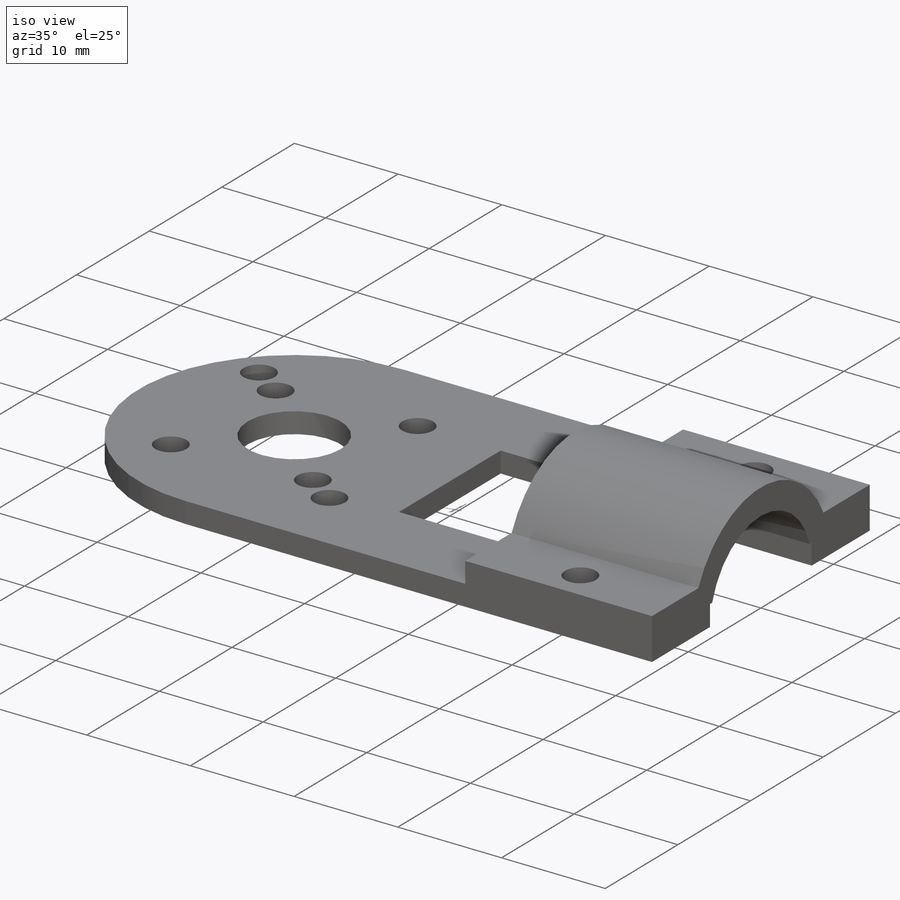
[diagram: iso view]
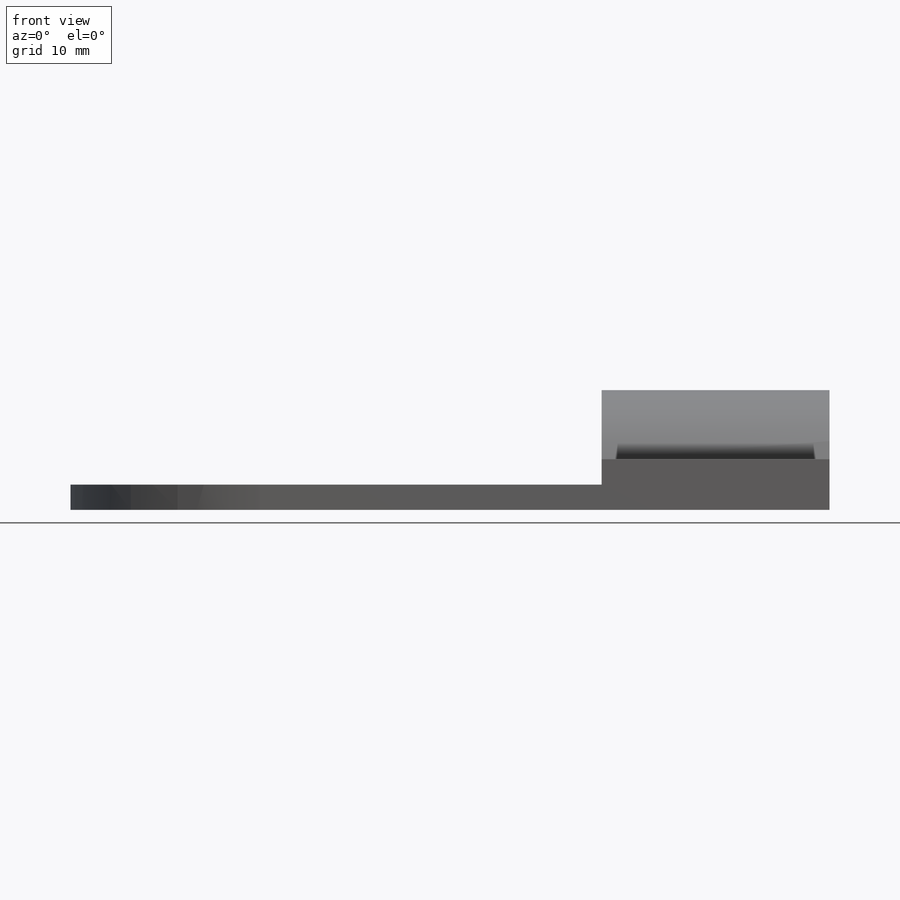
[diagram: front view]
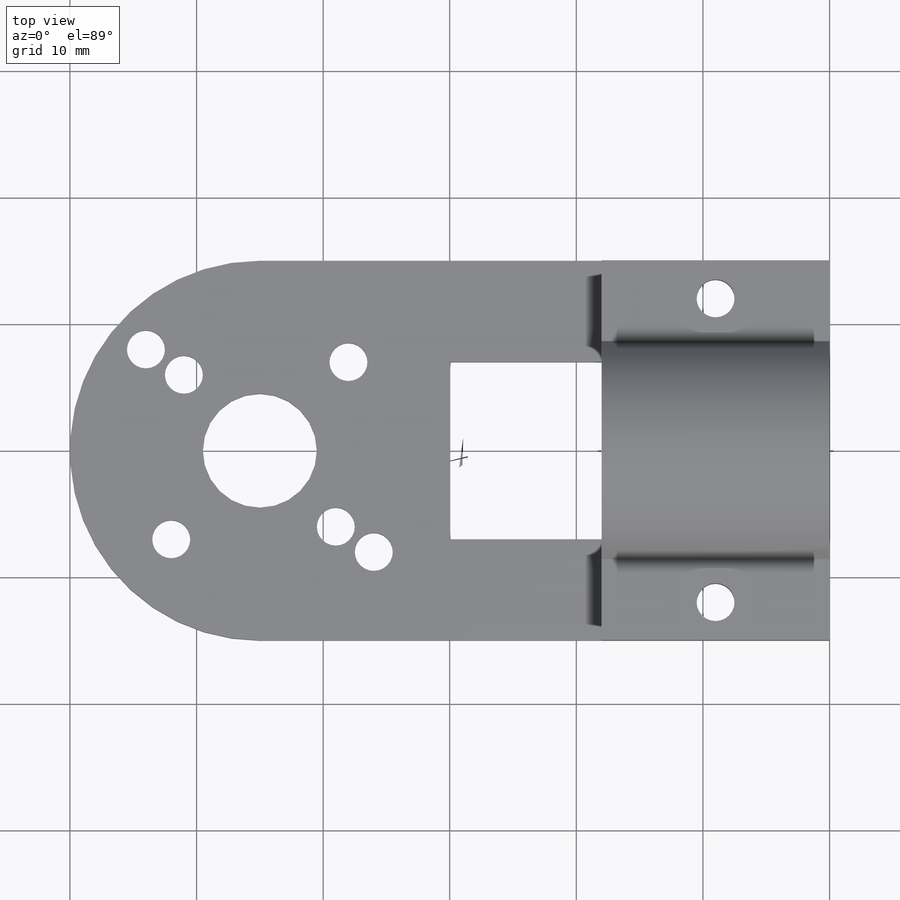
[diagram: top view]
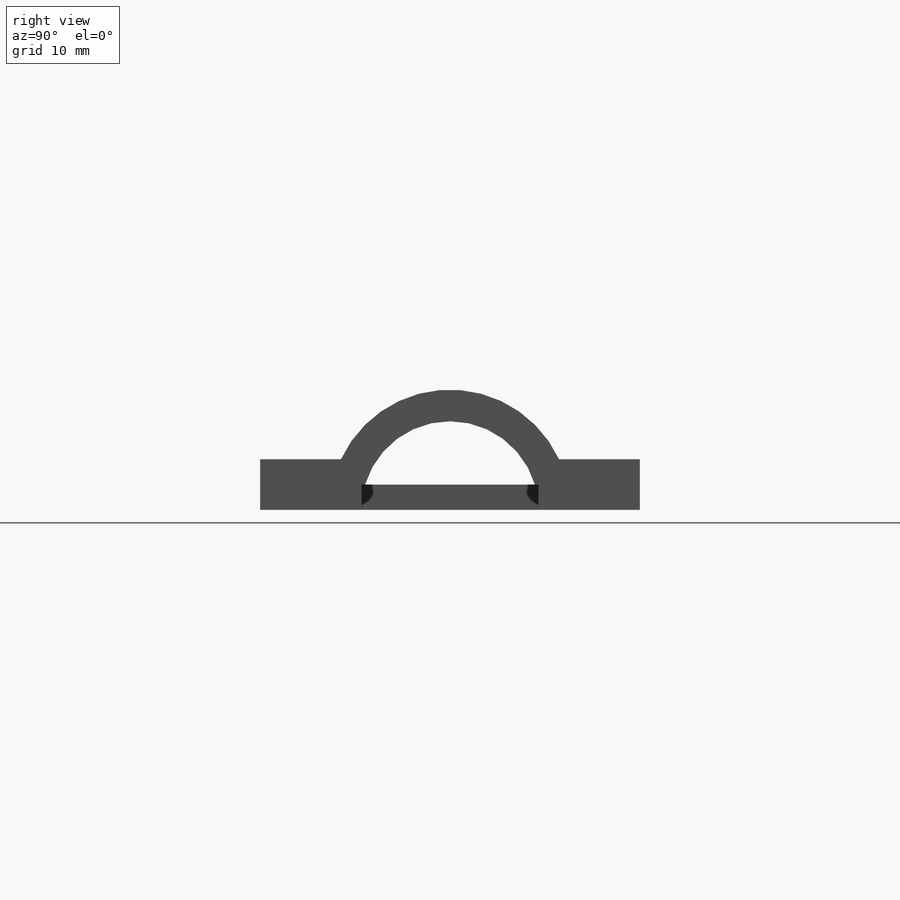
[diagram: right view]
SOLIDWORKS PART (.sldprt)
format: sldprt  version: not decoded by parser v0  size: 276,480 bytes
history: native  units: mm
features: sketch x4, plane x3, extrude x2, cut_extrude x2, material x1 (+9 scaffold rows collapsed)
feature tree (21):
  scaffold x9  (default folders/planes/origin — collapsed)
  material  "Plástico personalizado"
  plane  "Plano frontal"
  plane  "Plano superior"
  plane  "Plano direito"
  sketch  "Esboço1"  dims[c1.D5=2.0mm c1.D7=30.0mm c2.D5=9.0mm c2.D10=3.0mm c2.D1=60.0mm c2.D2=30.0mm c2.D3=14.0mm c2.D4=30.0mm c3.D3=30.0mm c3.D4=14.0mm c3.D6=9.0mm c3.D7=9.0mm c4.D6=15.0mm c4.D1=30.0mm c4.D3=14.0mm c4.D5=8.0mm c4.D4=9.0mm c5.D6=8.0mm c5.D8=6.0mm c5.D9=6.0mm c5.D11=7.0mm c5.D12=7.0mm c5.D13=6.0mm c5.D14=6.0mm c5.D15=8.0mm c5.D16=9.0mm c5.D17=7.0mm c5.D18=7.0mm]
  extrude  "Ressalto-extrusão1"  Depth=2mm
  sketch  "Esboço2"  dims[c1.D2=19.0mm c1.D3=14.0mm c2.D2=9.5mm c2.D1=2.0mm]
  extrude  "Ressalto-extrusão2"  Depth=18mm
  sketch  "Esboço3"  dims[D1=14.0mm]
  cut_extrude  "Corte-extrusão1"  Depth=18mm
  sketch  "Esboço4"  dims[D1=3.0mm D2=9.0mm D3=3.0mm D4=3.0mm]
  cut_extrude  "Corte-extrusão2"  Depth=17mm
decode coverage: 8 of 8 modeling features carry decoded parameters
note: suppression state not decoded; provenance and decode notes live in map.json
